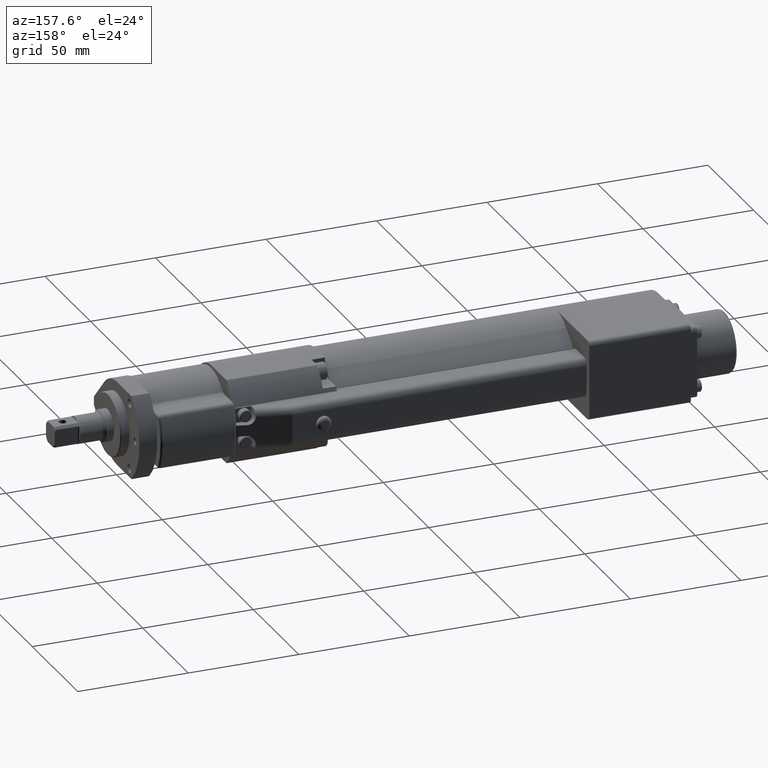
[diagram: clean part render]
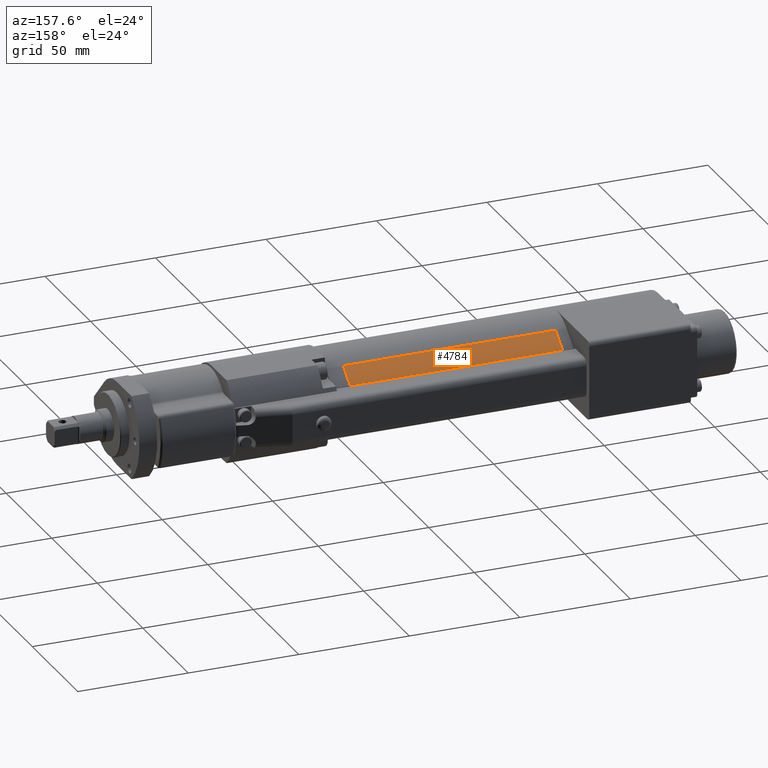
[diagram: same view with one face highlighted and labeled with its STEP entity id]
A machine part, auxiliary view. The second image highlights one B-rep face of the part: STEP entity #4784.
In plain terms, the highlighted planar face has unit normal (0, -0.6157, -0.788).
Its self-contained STEP definition (entity closure, byte-faithful):
#52 = DIRECTION ( 'NONE',  ( 0.0000000000000000000, 0.7880107536067254600, -0.6156614753256537400 ) ) ;
#235 = EDGE_CURVE ( 'NONE', #5031, #7339, #6432, .T. ) ;
#803 = EDGE_LOOP ( 'NONE', ( #6947, #5346, #5080, #4175 ) ) ;
#1107 = DIRECTION ( 'NONE',  ( 1.000000000000000000, -0.0000000000000000000, -0.0000000000000000000 ) ) ;
#1427 = CARTESIAN_POINT ( 'NONE',  ( -194.0000000000000000, 11.08190655586176700, 14.18419356492105800 ) ) ;
#2127 = CARTESIAN_POINT ( 'NONE',  ( -98.00000000000000000, 18.81285030327931900, 8.144118335731814500 ) ) ;
#2627 = DIRECTION ( 'NONE',  ( 0.0000000000000000000, -0.6156614753256538500, -0.7880107536067255700 ) ) ;
#2906 = CARTESIAN_POINT ( 'NONE',  ( -194.0000000000000000, 18.81285030327931900, 8.144118335731814500 ) ) ;
#3105 = EDGE_CURVE ( 'NONE', #7339, #4996, #8113, .T. ) ;
#3239 = EDGE_CURVE ( 'NONE', #5829, #4996, #6718, .T. ) ;
#4069 = CARTESIAN_POINT ( 'NONE',  ( -194.0000000000000000, 18.81285030327931900, 8.144118335731814500 ) ) ;
#4093 = CARTESIAN_POINT ( 'NONE',  ( -194.0000000000000000, 11.08190655586176700, 14.18419356492105800 ) ) ;
#4175 = ORIENTED_EDGE ( 'NONE', *, *, #235, .T. ) ;
#4238 = EDGE_CURVE ( 'NONE', #5031, #5829, #5517, .T. ) ;
#4619 = CARTESIAN_POINT ( 'NONE',  ( -98.00000000000000000, 11.08190655586176700, 14.18419356492105800 ) ) ;
#4662 = AXIS2_PLACEMENT_3D ( 'NONE', #4093, #2627, #7836 ) ;
#4747 = VECTOR ( 'NONE', #9301, 1000.000000000000000 ) ;
#4784 = ADVANCED_FACE ( 'NONE', ( #7188 ), #5578, .F. ) ;
#4996 = VERTEX_POINT ( 'NONE', #2127 ) ;
#5031 = VERTEX_POINT ( 'NONE', #1427 ) ;
#5080 = ORIENTED_EDGE ( 'NONE', *, *, #4238, .F. ) ;
#5204 = CARTESIAN_POINT ( 'NONE',  ( -98.00000000000000000, 11.08190655586176700, 14.18419356492105800 ) ) ;
#5271 = CARTESIAN_POINT ( 'NONE',  ( -194.0000000000000000, 11.08190655586176700, 14.18419356492105800 ) ) ;
#5346 = ORIENTED_EDGE ( 'NONE', *, *, #3239, .F. ) ;
#5517 = LINE ( 'NONE', #5271, #7506 ) ;
#5578 = PLANE ( 'NONE',  #4662 ) ;
#5829 = VERTEX_POINT ( 'NONE', #2906 ) ;
#6330 = CARTESIAN_POINT ( 'NONE',  ( -194.0000000000000000, 11.08190655586176700, 14.18419356492105800 ) ) ;
#6432 = LINE ( 'NONE', #6330, #8391 ) ;
#6718 = LINE ( 'NONE', #4069, #4747 ) ;
#6870 = DIRECTION ( 'NONE',  ( 0.0000000000000000000, 0.7880107536067254600, -0.6156614753256537400 ) ) ;
#6947 = ORIENTED_EDGE ( 'NONE', *, *, #3105, .T. ) ;
#7188 = FACE_OUTER_BOUND ( 'NONE', #803, .T. ) ;
#7339 = VERTEX_POINT ( 'NONE', #5204 ) ;
#7506 = VECTOR ( 'NONE', #52, 1000.000000000000200 ) ;
#7836 = DIRECTION ( 'NONE',  ( 0.0000000000000000000, 0.7880107536067254600, -0.6156614753256537400 ) ) ;
#8113 = LINE ( 'NONE', #4619, #9644 ) ;
#8391 = VECTOR ( 'NONE', #1107, 1000.000000000000000 ) ;
#9301 = DIRECTION ( 'NONE',  ( 1.000000000000000000, -0.0000000000000000000, -0.0000000000000000000 ) ) ;
#9644 = VECTOR ( 'NONE', #6870, 1000.000000000000200 ) ;